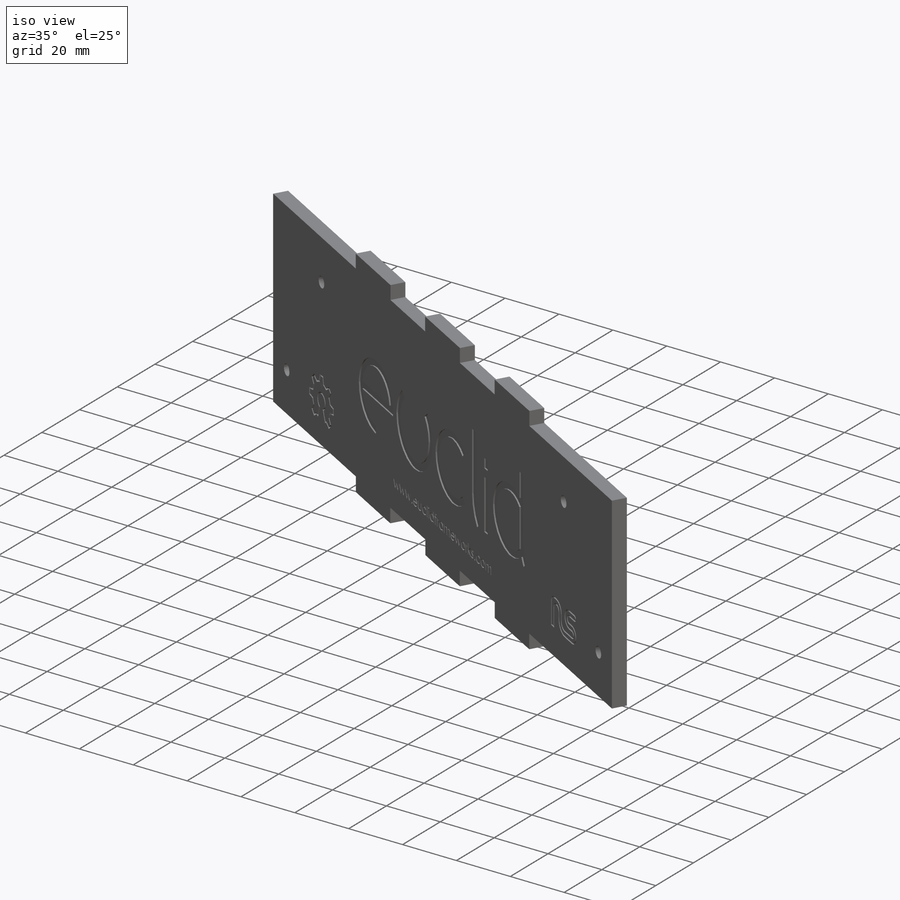
[diagram: iso view]
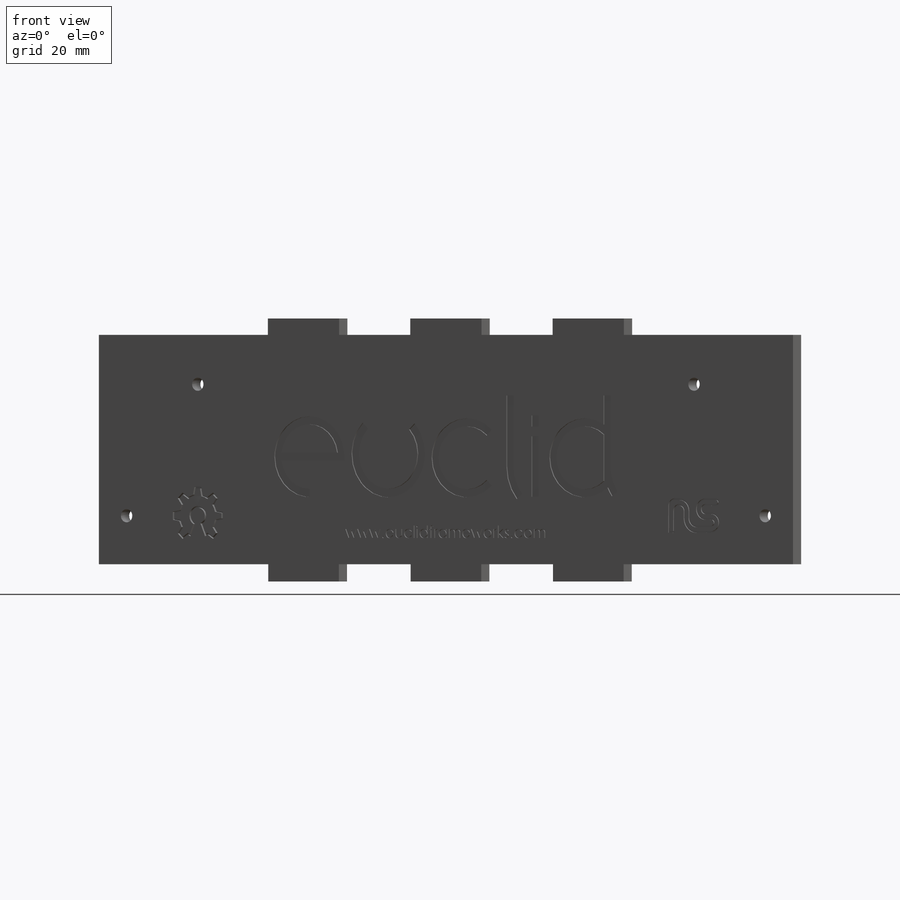
[diagram: front view]
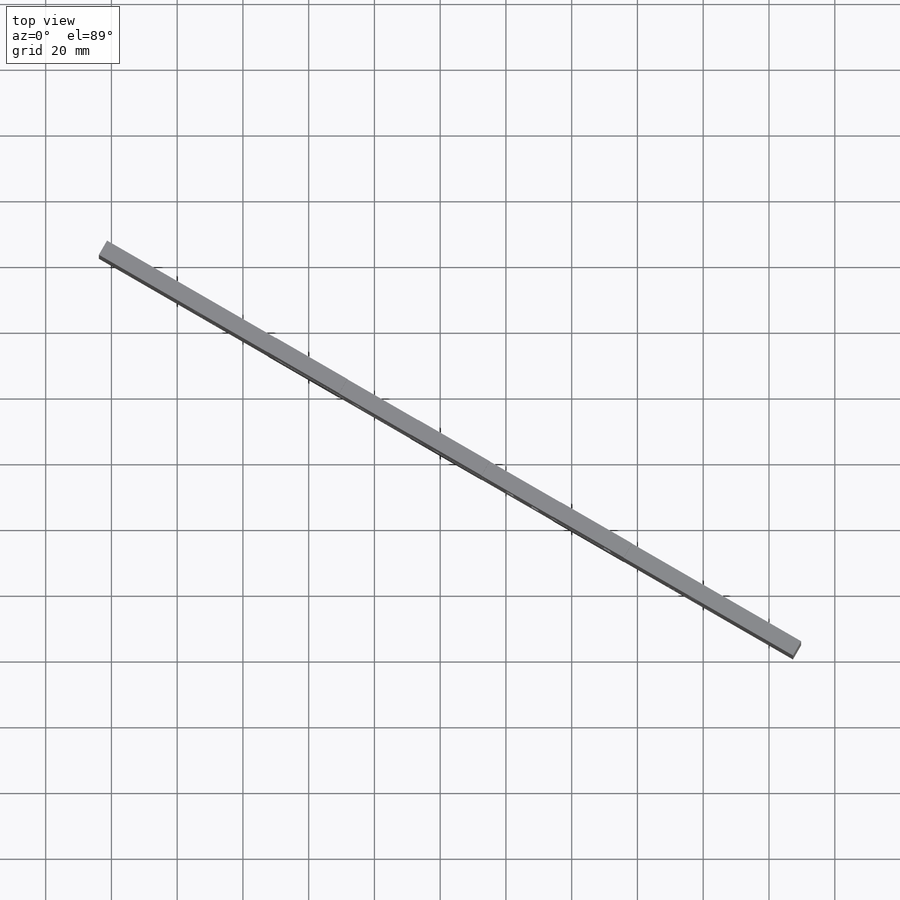
[diagram: top view]
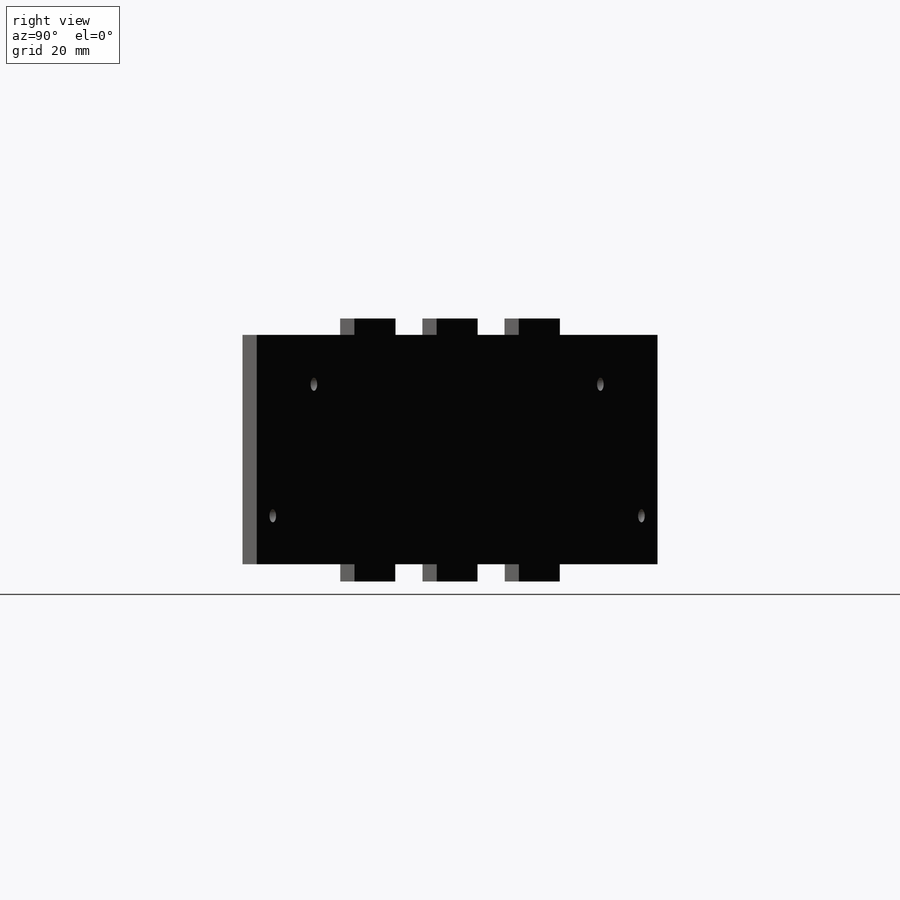
[diagram: right view]
SOLIDWORKS PART (.sldprt)
format: sldprt  version: not decoded by parser v0  size: 1,483,264 bytes
history: native  units: mm
features: sketch x8, cut_extrude x5, material x1, extrude x1 (+12 scaffold rows collapsed)
feature tree (27):
  scaffold x12  (default folders/planes/origin — collapsed)
  material  "Material <not specified>"
  sketch  "Sketch2"
  cut_extrude  "Cut-Extrude1"  Depth=1mm
  sketch  "Sketch3"  dims[c1.D1=5.0mm c1.D2=25.0mm c1.D3=25.0mm c2.D2=25.0mm c2.D4=25.0mm]
  cut_extrude  "Cut-Extrude2"  [1 undecoded]
  sketch  "Sketch5"
  sketch  "Block2"  dims[D1=2.5mm]
  cut_extrude  "Cut-Extrude4"  Depth=0.5mm
  sketch  "Sketch6"  dims[D1=8.0mm]
  cut_extrude  "Cut-Extrude5"  Depth=0.5mm
  sketch  "Sketch8"
  sketch  "Block3"  dims[c1.D5=10.0mm c1.D6=20.0mm c1.D7=10.0mm c1.D1=10.0mm c1.D2=10.0mm c1.D3=10.0mm c1.D4=10.0mm c1.D11=~17.911429mm c1.D13=10.0mm c1.D14=20.0mm c1.D15=10.0mm c2.D1=10.0mm c2.D2=10.0mm c2.D3=10.0mm c2.D4=20.0mm c2.D5=10.0mm c2.D6=20.0mm c2.D7=18.0mm c2.D8=10.0mm c2.D9=14.0mm c2.D10=10.0mm c2.D11=~18.703838mm c2.D12=25.0mm c3.D4=15.0mm c3.D5=27.0mm c3.D12=~8.796162mm c4.D5=9.0mm c4.D1=~196.526724mm c5.D1=~0.366127deg c6.D1=5.0mm]
  cut_extrude  "Cut-Extrude6"  Depth=0.5mm
  sketch  "Sketch9"  dims[D1=0.5mm]
  extrude  "Boss-Extrude1"  [1 undecoded]
decode coverage: 9 of 14 modeling features carry decoded parameters
note: ~ marks probable driven/reference dimensions
note: 2 parameter values undecoded
note: suppression state not decoded; provenance and decode notes live in map.json
